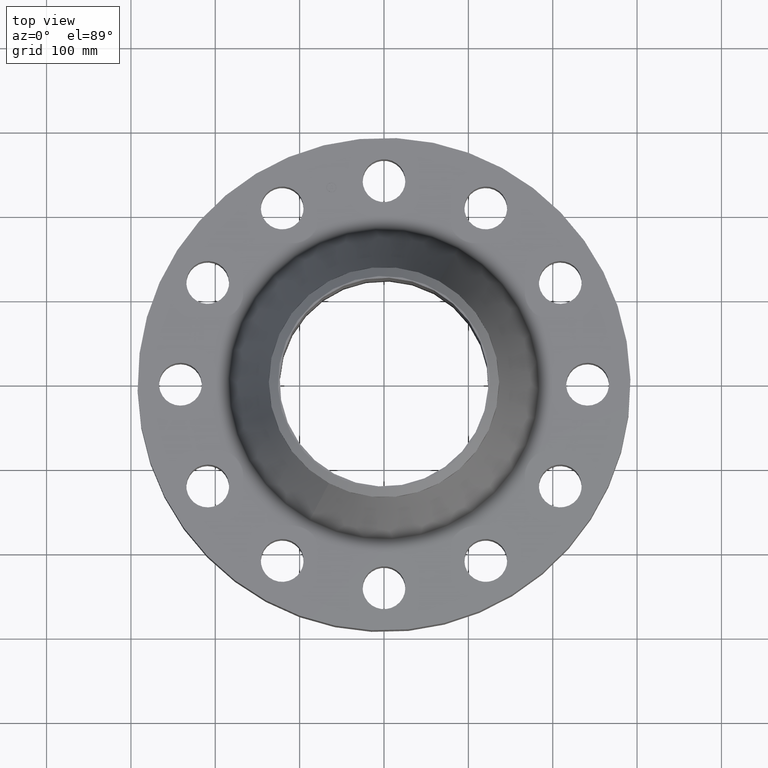
[diagram: clean part render]
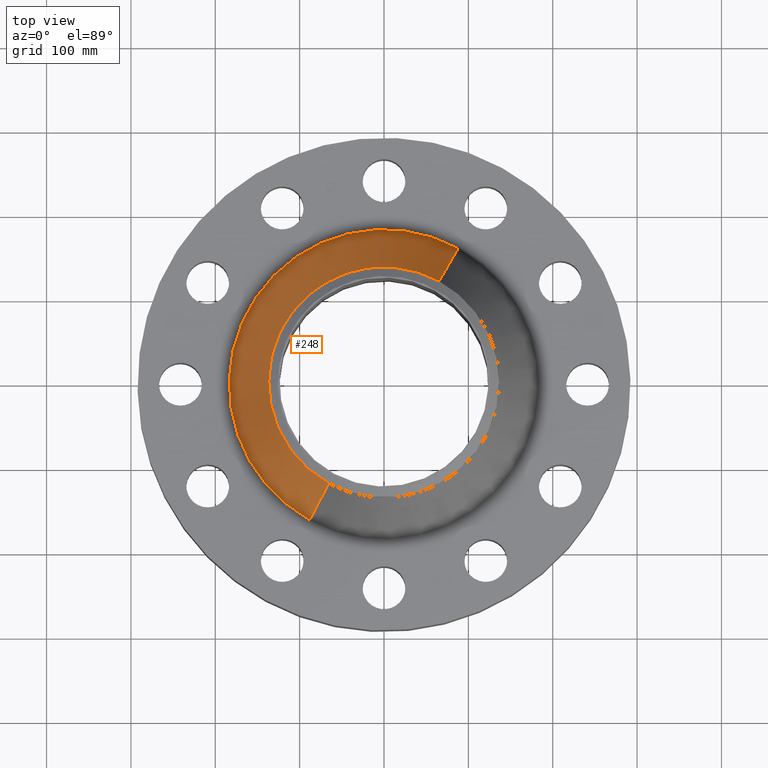
[diagram: same view with one face highlighted and labeled with its STEP entity id]
A machine part, top view. The second image highlights one B-rep face of the part: STEP entity #248.
In plain terms, the highlighted conical surface has half-angle 19.861 deg.
Its self-contained STEP definition (entity closure, byte-faithful):
#196=AXIS2_PLACEMENT_3D('Circle Axis2P3D',#194,#195,$) ;
#209=AXIS2_PLACEMENT_3D('Cone Axis2P3D',#206,#207,#208) ;
#239=AXIS2_PLACEMENT_3D('Circle Axis2P3D',#237,#238,$) ;
#167=CARTESIAN_POINT('Vertex',(3.46211364598,6.33735652014,4.32923035457)) ;
#174=CARTESIAN_POINT('Vertex',(-3.46211364598,-6.33735652014,4.32923035457)) ;
#194=CARTESIAN_POINT('Axis2P3D Location',(0.,0.,4.32923035457)) ;
#206=CARTESIAN_POINT('Axis2P3D Location',(0.,0.,9.44053548148)) ;
#211=CARTESIAN_POINT('Line Origine',(3.01951295799,5.52718139516,6.88488291803)) ;
#215=CARTESIAN_POINT('Vertex',(2.57691227001,4.71700627018,9.44053548148)) ;
#222=CARTESIAN_POINT('Vertex',(-2.57691227001,-4.71700627018,9.44053548148)) ;
#225=CARTESIAN_POINT('Line Origine',(-3.01951295799,-5.52718139516,6.88488291803)) ;
#237=CARTESIAN_POINT('Axis2P3D Location',(0.,0.,9.44053548148)) ;
#195=DIRECTION('Axis2P3D Direction',(0.,0.,-0.0393700787402)) ;
#207=DIRECTION('Axis2P3D Direction',(0.,0.,-0.0393700787402)) ;
#208=DIRECTION('Axis2P3D XDirection',(-0.0188750212049,-0.0345504945626,0.)) ;
#212=DIRECTION('Vector Direction',(0.00641273268588,0.0117384284441,-0.0370282224414)) ;
#226=DIRECTION('Vector Direction',(-0.00641273268588,-0.0117384284441,-0.0370282224414)) ;
#238=DIRECTION('Axis2P3D Direction',(0.,0.,-0.0393700787402)) ;
#213=VECTOR('Line Direction',#212,0.0393700787402) ;
#227=VECTOR('Line Direction',#226,0.0393700787402) ;
#243=ORIENTED_EDGE('',*,*,#198,.F.) ;
#244=ORIENTED_EDGE('',*,*,#229,.T.) ;
#245=ORIENTED_EDGE('',*,*,#241,.T.) ;
#246=ORIENTED_EDGE('',*,*,#217,.F.) ;
#248=ADVANCED_FACE('PartBody',(#247),#210,.T.) ;
#197=CIRCLE('generated circle',#196,7.22137926999) ;
#240=CIRCLE('generated circle',#239,5.37500000002) ;
#210=CONICAL_SURFACE('Cone',#209,5.37500000002,0.346647931681) ;
#198=EDGE_CURVE('',#175,#168,#197,.T.) ;
#217=EDGE_CURVE('',#168,#216,#214,.F.) ;
#229=EDGE_CURVE('',#175,#223,#228,.F.) ;
#241=EDGE_CURVE('',#223,#216,#240,.T.) ;
#242=EDGE_LOOP('',(#243,#244,#245,#246)) ;
#247=FACE_OUTER_BOUND('',#242,.T.) ;
#214=LINE('Line',#211,#213) ;
#228=LINE('Line',#225,#227) ;
#168=VERTEX_POINT('',#167) ;
#175=VERTEX_POINT('',#174) ;
#216=VERTEX_POINT('',#215) ;
#223=VERTEX_POINT('',#222) ;